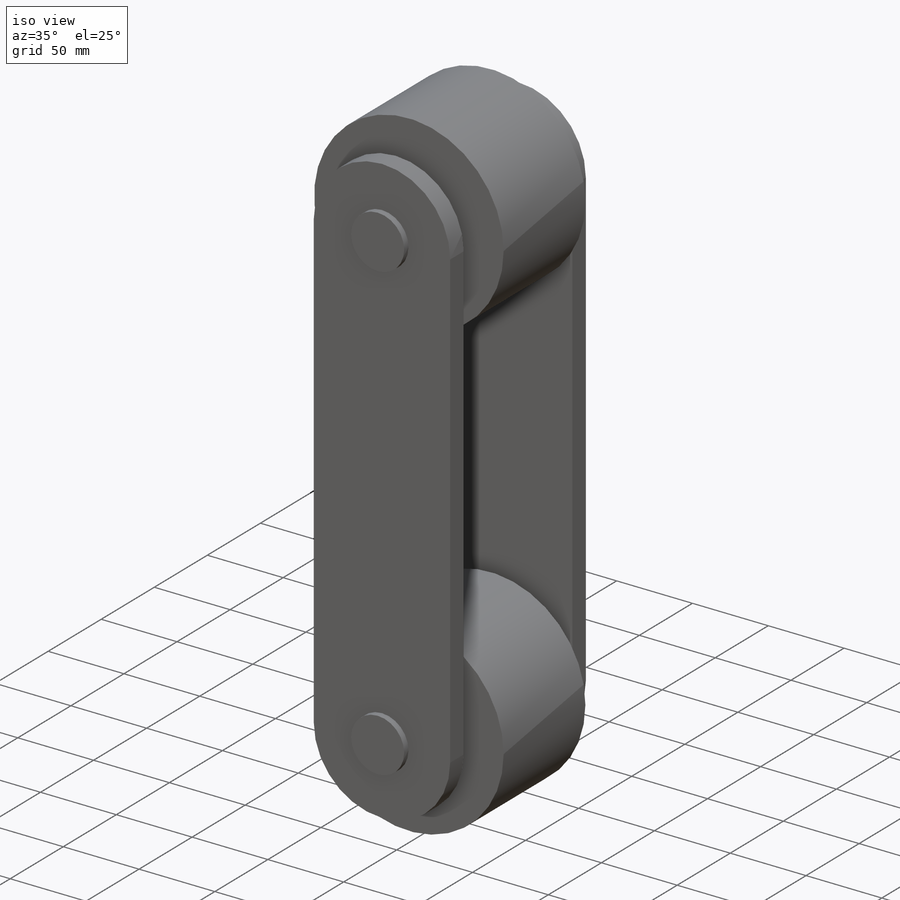
[diagram: iso view]
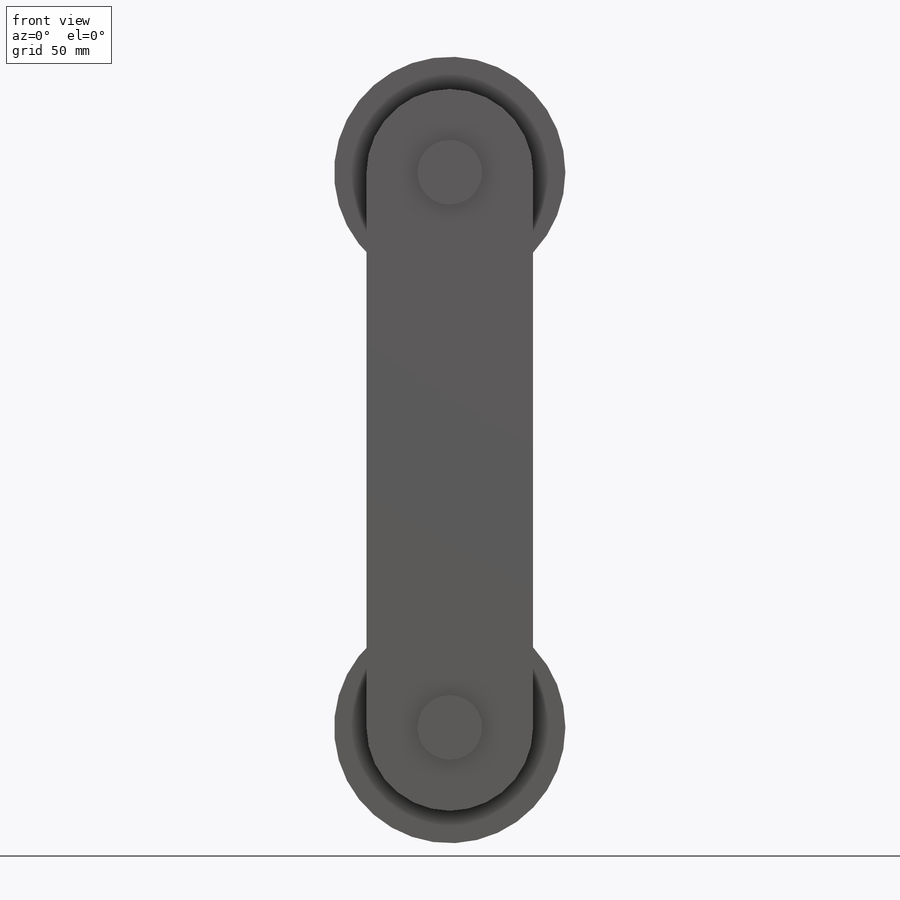
[diagram: front view]
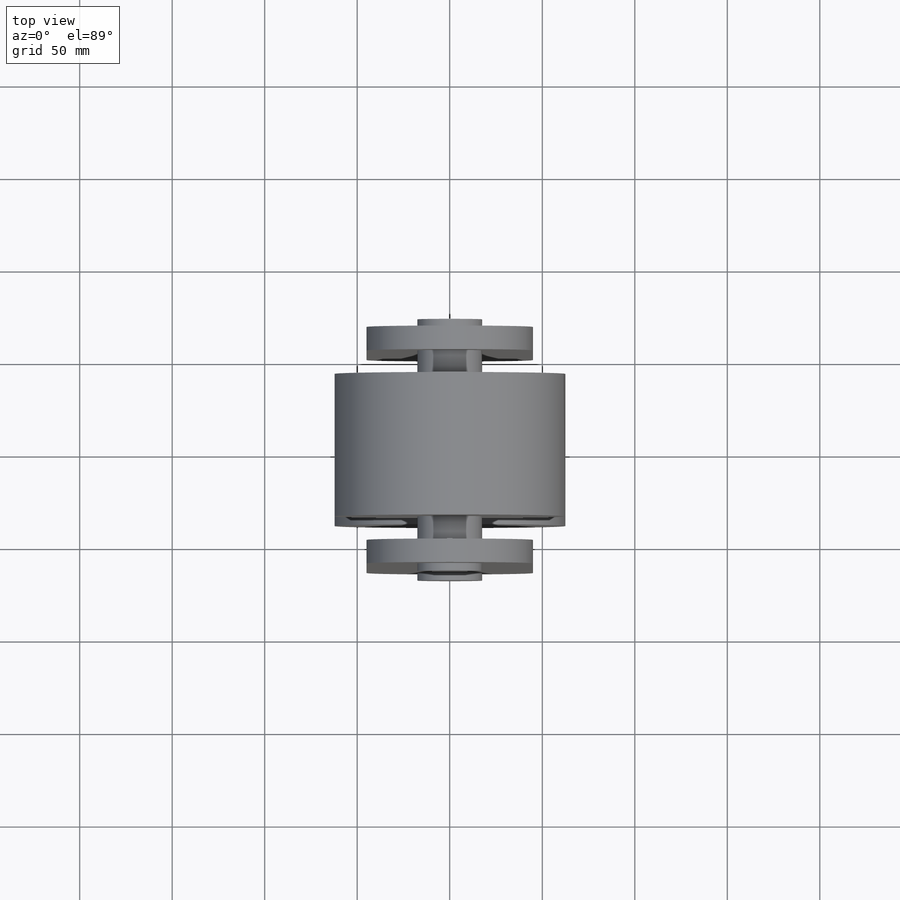
[diagram: top view]
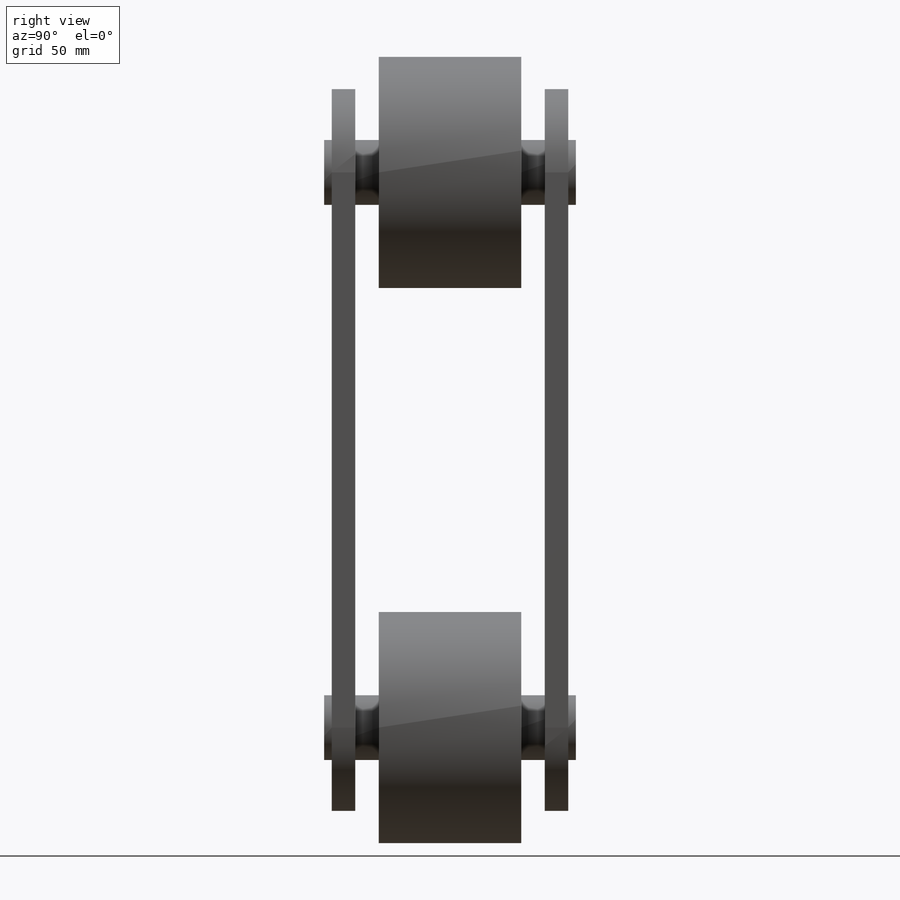
[diagram: right view]
SOLIDWORKS PART (.sldprt)
format: sldprt  version: not decoded by parser v0  size: 179,200 bytes
history: native  units: mm
features: sketch x5, extrude x3, chamfer x3, material x1, fillet x1, mirror x1 (+11 scaffold rows collapsed)
feature tree (25):
  scaffold x11  (default folders/planes/origin — collapsed)
  material  "Material <not specified>"
  sketch  "Sketch1"  dims[D3=35.0mm D1=300.0mm D2=90.0mm]
  extrude  "Boss-Extrude2"  Depth=12.7mm
  sketch  "Sketch2"
  extrude  "Boss-Extrude3"  Depth=68mm
  sketch  "Sketch3"  dims[D1=125.0mm]
  extrude  "Boss-Extrude4"  Depth=12.7mm
  fillet  "Fillet4"  Radius=2mm
  chamfer  "Chamfer2"  Distance=2mm Angle=45deg
  chamfer  "Chamfer3"  Distance=2mm Angle=45deg
  chamfer  "Chamfer4"  Distance=2mm Angle=45deg
  mirror  "Mirror1"
  sketch  "Sketch4"
  sketch  "Sketch5"  dims[D1=1718.87mm D2=2700.0mm]
decode coverage: 10 of 13 modeling features carry decoded parameters
note: suppression state not decoded; provenance and decode notes live in map.json
